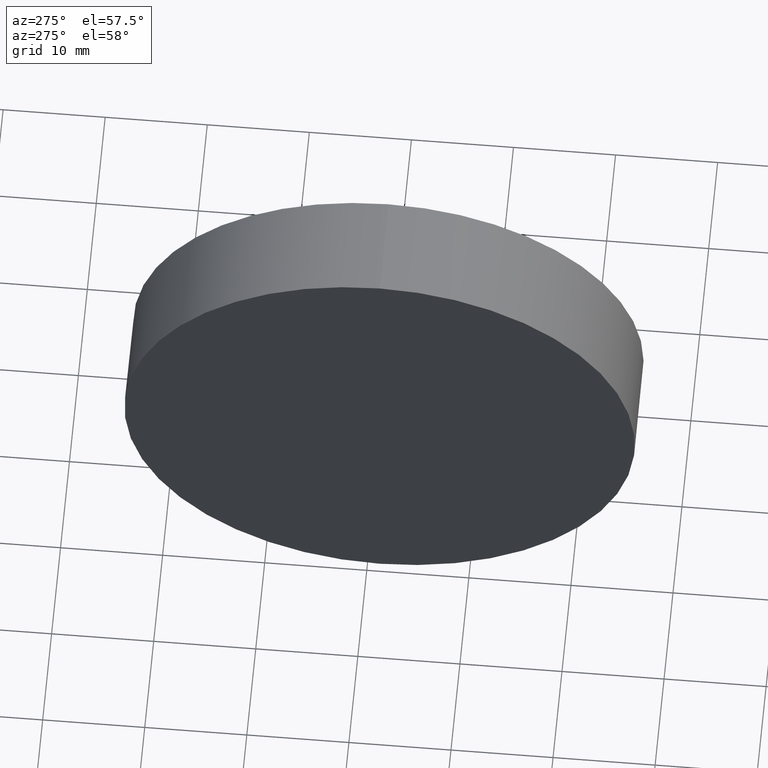
[diagram: clean part render]
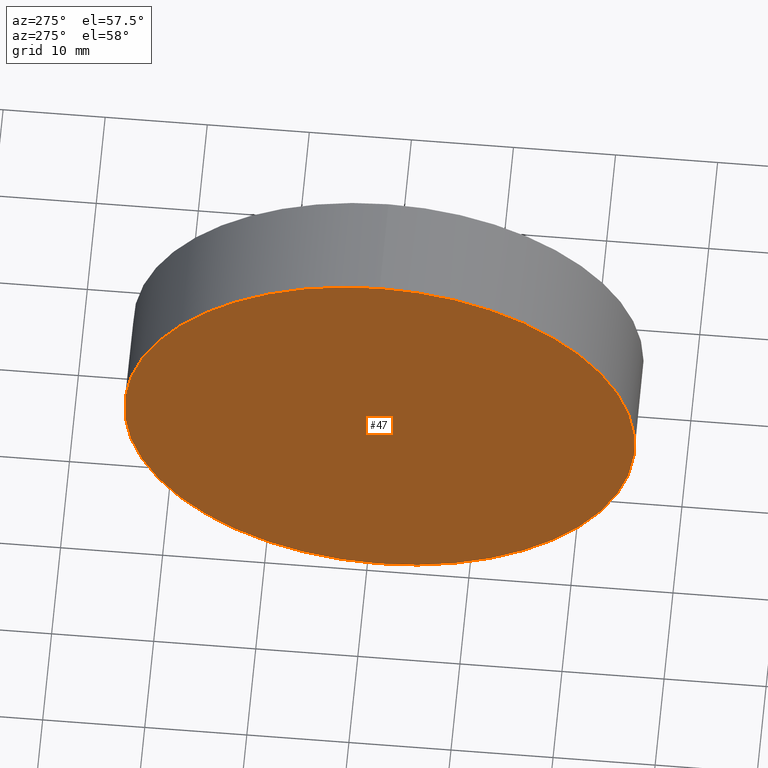
[diagram: same view with one face highlighted and labeled with its STEP entity id]
A machine part, auxiliary view. The second image highlights one B-rep face of the part: STEP entity #47.
In plain terms, the highlighted planar face has unit normal (1, 0, 0).
Its self-contained STEP definition (entity closure, byte-faithful):
#9 = AXIS2_PLACEMENT_3D ( 'NONE', #128, #180, #98 ) ;
#10 = ORIENTED_EDGE ( 'NONE', *, *, #77, .T. ) ;
#26 = VERTEX_POINT ( 'NONE', #63 ) ;
#47 = ADVANCED_FACE ( 'NONE', ( #106 ), #96, .F. ) ;
#58 = CIRCLE ( 'NONE', #105, 24.99999999999999300 ) ;
#60 = AXIS2_PLACEMENT_3D ( 'NONE', #153, #67, #97 ) ;
#63 = CARTESIAN_POINT ( 'NONE',  ( 230.1853110698390300, 138.7560422467448700, 24.99999999999999300 ) ) ;
#64 = CARTESIAN_POINT ( 'NONE',  ( 230.1853110698390300, 138.7560422467448700, -24.99999999999999300 ) ) ;
#67 = DIRECTION ( 'NONE',  ( -1.000000000000000000, -0.0000000000000000000, -0.0000000000000000000 ) ) ;
#77 = EDGE_CURVE ( 'NONE', #26, #120, #133, .T. ) ;
#96 = PLANE ( 'NONE',  #9 ) ;
#97 = DIRECTION ( 'NONE',  ( 0.0000000000000000000, 0.0000000000000000000, 1.000000000000000000 ) ) ;
#98 = DIRECTION ( 'NONE',  ( 0.0000000000000000000, 0.0000000000000000000, -1.000000000000000000 ) ) ;
#105 = AXIS2_PLACEMENT_3D ( 'NONE', #151, #179, #126 ) ;
#106 = FACE_OUTER_BOUND ( 'NONE', #125, .T. ) ;
#117 = EDGE_CURVE ( 'NONE', #120, #26, #58, .T. ) ;
#120 = VERTEX_POINT ( 'NONE', #64 ) ;
#125 = EDGE_LOOP ( 'NONE', ( #10, #170 ) ) ;
#126 = DIRECTION ( 'NONE',  ( 0.0000000000000000000, 0.0000000000000000000, 1.000000000000000000 ) ) ;
#128 = CARTESIAN_POINT ( 'NONE',  ( 230.1853110698390300, 138.7560422467448700, 0.0000000000000000000 ) ) ;
#133 = CIRCLE ( 'NONE', #60, 24.99999999999999300 ) ;
#151 = CARTESIAN_POINT ( 'NONE',  ( 230.1853110698390300, 138.7560422467448700, 0.0000000000000000000 ) ) ;
#153 = CARTESIAN_POINT ( 'NONE',  ( 230.1853110698390300, 138.7560422467448700, 0.0000000000000000000 ) ) ;
#170 = ORIENTED_EDGE ( 'NONE', *, *, #117, .T. ) ;
#179 = DIRECTION ( 'NONE',  ( -1.000000000000000000, -0.0000000000000000000, -0.0000000000000000000 ) ) ;
#180 = DIRECTION ( 'NONE',  ( 1.000000000000000000, 0.0000000000000000000, 0.0000000000000000000 ) ) ;